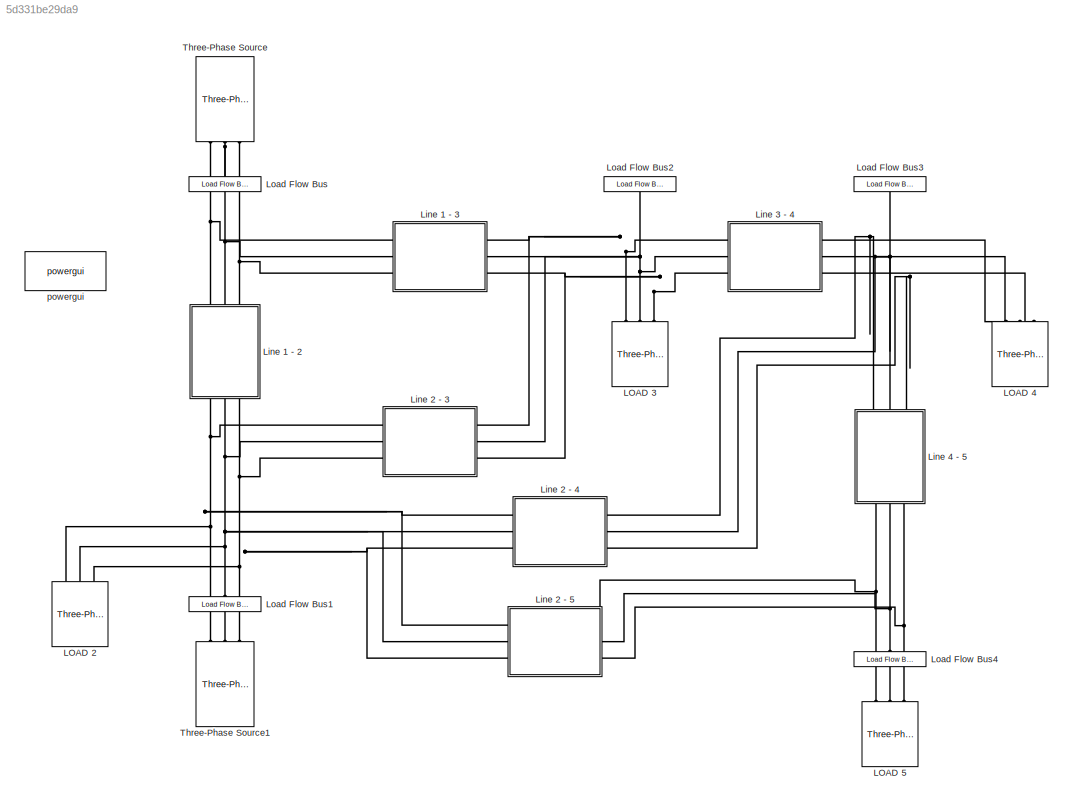
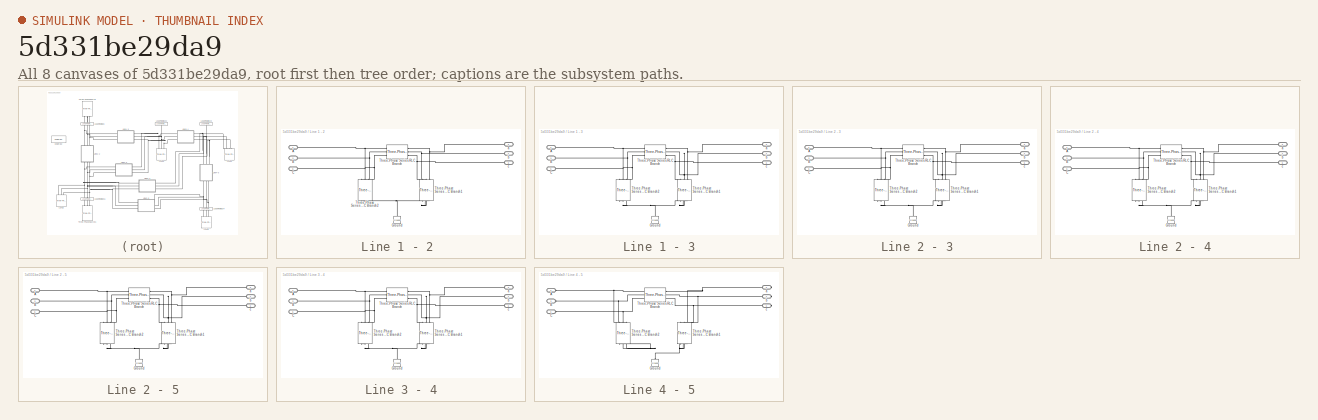
[diagram: thumbnail index - all 8 canvases of the model, root first then tree order]
MODEL slx_5d331be29da9
KIND model
CONFIG AbsTol = auto
CONFIG EnableMultiTasking = off
CONFIG FixedStep = auto
CONFIG MaxStep = auto
CONFIG MinStep = auto
CONFIG RelTol = 1e-3
CONFIG SampleTimeConstraint = Unconstrained
CONFIG Solver = VariableStepAuto
CONFIG SolverName = VariableStepAuto
CONFIG StartTime = 0.0
CONFIG StopTime = 10.0
BLOCK [Reference] LOAD 2  REF=powerlib/Elements/Three-Phase
Series RLC Load
  AttributesFormatString = \n
  Ports = [0, 0, 0, 0, 0, 3]
  SourceBlock = powerlib/Elements/Three-Phase\nSeries RLC Load
  SourceProductBaseCode = PS
  SourceProductName = Simscape Electrical
  SourceType = Three-Phase Series RLC Load
BLOCK [Reference] LOAD 3  REF=powerlib/Elements/Three-Phase
Series RLC Load
  AttributesFormatString = \n
  Ports = [0, 0, 0, 0, 0, 3]
  SourceBlock = powerlib/Elements/Three-Phase\nSeries RLC Load
  SourceProductBaseCode = PS
  SourceProductName = Simscape Electrical
  SourceType = Three-Phase Series RLC Load
BLOCK [Reference] LOAD 4  REF=powerlib/Elements/Three-Phase
Series RLC Load
  AttributesFormatString = \n
  Ports = [0, 0, 0, 0, 0, 3]
  SourceBlock = powerlib/Elements/Three-Phase\nSeries RLC Load
  SourceProductBaseCode = PS
  SourceProductName = Simscape Electrical
  SourceType = Three-Phase Series RLC Load
BLOCK [Reference] LOAD 5  REF=powerlib/Elements/Three-Phase
Series RLC Load
  AttributesFormatString = \n
  Ports = [0, 0, 0, 0, 0, 3]
  SourceBlock = powerlib/Elements/Three-Phase\nSeries RLC Load
  SourceProductBaseCode = PS
  SourceProductName = Simscape Electrical
  SourceType = Three-Phase Series RLC Load
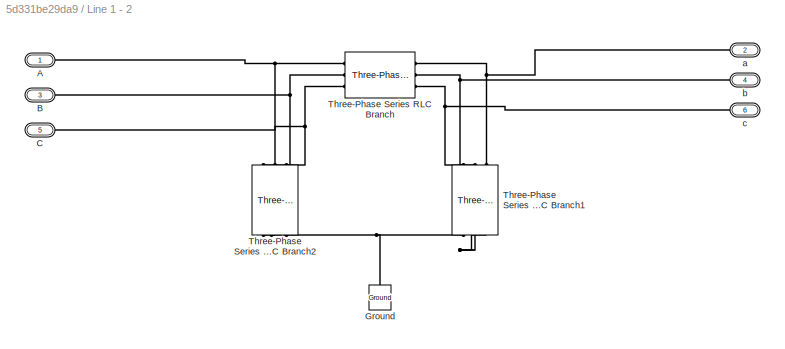
BLOCK [SubSystem] Line 1 - 2 
  Ports = [0, 0, 0, 0, 0, 3, 3]
  RequestExecContextInheritance = off
BLOCK [PMIOPort] Line 1 - 2 /A
  Side = Left
BLOCK [PMIOPort] Line 1 - 2 /B
  Port = 3
  Side = Left
BLOCK [PMIOPort] Line 1 - 2 /C
  Port = 5
  Side = Left
BLOCK [Reference] Line 1 - 2 /Ground  REF=powerlib/Elements/Ground
  Ports = [0, 0, 0, 0, 0, 1]
  SourceBlock = powerlib/Elements/Ground
  SourceProductBaseCode = PS
  SourceProductName = Simscape Electrical
  SourceType = Ground
BLOCK [Reference] Line 1 - 2 /Three-Phase Series RLC Branch  REF=powerlib/Elements/Three-Phase
Series RLC Branch
  AttributesFormatString = \n
  Ports = [0, 0, 0, 0, 0, 3, 3]
  SourceBlock = powerlib/Elements/Three-Phase\nSeries RLC Branch
  SourceProductBaseCode = PS
  SourceProductName = Simscape Electrical
  SourceType = Three-Phase Series RLC Branch
BLOCK [Reference] Line 1 - 2 /Three-Phase Series RLC Branch1  REF=powerlib/Elements/Three-Phase
Series RLC Branch
  AttributesFormatString = \n
  Ports = [0, 0, 0, 0, 0, 3, 3]
  SourceBlock = powerlib/Elements/Three-Phase\nSeries RLC Branch
  SourceProductBaseCode = PS
  SourceProductName = Simscape Electrical
  SourceType = Three-Phase Series RLC Branch
BLOCK [Reference] Line 1 - 2 /Three-Phase Series RLC Branch2  REF=powerlib/Elements/Three-Phase
Series RLC Branch
  AttributesFormatString = \n
  Ports = [0, 0, 0, 0, 0, 3, 3]
  SourceBlock = powerlib/Elements/Three-Phase\nSeries RLC Branch
  SourceProductBaseCode = PS
  SourceProductName = Simscape Electrical
  SourceType = Three-Phase Series RLC Branch
BLOCK [PMIOPort] Line 1 - 2 /a
  Port = 2
  Side = Right
BLOCK [PMIOPort] Line 1 - 2 /b
  Port = 4
  Side = Right
BLOCK [PMIOPort] Line 1 - 2 /c
  Port = 6
  Side = Right
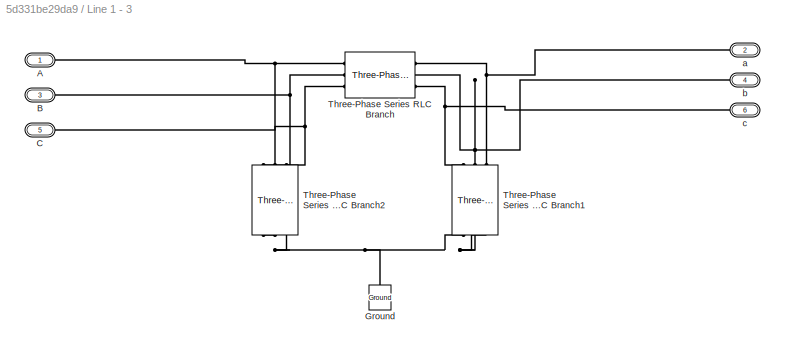
BLOCK [SubSystem] Line 1 - 3
  Ports = [0, 0, 0, 0, 0, 3, 3]
  RequestExecContextInheritance = off
BLOCK [PMIOPort] Line 1 - 3/A
  Side = Left
BLOCK [PMIOPort] Line 1 - 3/B
  Port = 3
  Side = Left
BLOCK [PMIOPort] Line 1 - 3/C
  Port = 5
  Side = Left
BLOCK [Reference] Line 1 - 3/Ground  REF=powerlib/Elements/Ground
  Ports = [0, 0, 0, 0, 0, 1]
  SourceBlock = powerlib/Elements/Ground
  SourceProductBaseCode = PS
  SourceProductName = Simscape Electrical
  SourceType = Ground
BLOCK [Reference] Line 1 - 3/Three-Phase Series RLC Branch  REF=powerlib/Elements/Three-Phase
Series RLC Branch
  AttributesFormatString = \n
  Ports = [0, 0, 0, 0, 0, 3, 3]
  SourceBlock = powerlib/Elements/Three-Phase\nSeries RLC Branch
  SourceProductBaseCode = PS
  SourceProductName = Simscape Electrical
  SourceType = Three-Phase Series RLC Branch
BLOCK [Reference] Line 1 - 3/Three-Phase Series RLC Branch1  REF=powerlib/Elements/Three-Phase
Series RLC Branch
  AttributesFormatString = \n
  Ports = [0, 0, 0, 0, 0, 3, 3]
  SourceBlock = powerlib/Elements/Three-Phase\nSeries RLC Branch
  SourceProductBaseCode = PS
  SourceProductName = Simscape Electrical
  SourceType = Three-Phase Series RLC Branch
BLOCK [Reference] Line 1 - 3/Three-Phase Series RLC Branch2  REF=powerlib/Elements/Three-Phase
Series RLC Branch
  AttributesFormatString = \n
  Ports = [0, 0, 0, 0, 0, 3, 3]
  SourceBlock = powerlib/Elements/Three-Phase\nSeries RLC Branch
  SourceProductBaseCode = PS
  SourceProductName = Simscape Electrical
  SourceType = Three-Phase Series RLC Branch
BLOCK [PMIOPort] Line 1 - 3/a
  Port = 2
  Side = Right
BLOCK [PMIOPort] Line 1 - 3/b
  Port = 4
  Side = Right
BLOCK [PMIOPort] Line 1 - 3/c
  Port = 6
  Side = Right
BLOCK [SubSystem] Line 2 - 3
  Ports = [0, 0, 0, 0, 0, 3, 3]
  RequestExecContextInheritance = off
BLOCK [PMIOPort] Line 2 - 3/A
  Side = Left
BLOCK [PMIOPort] Line 2 - 3/B
  Port = 3
  Side = Left
BLOCK [PMIOPort] Line 2 - 3/C
  Port = 5
  Side = Left
BLOCK [Reference] Line 2 - 3/Ground  REF=powerlib/Elements/Ground
  Ports = [0, 0, 0, 0, 0, 1]
  SourceBlock = powerlib/Elements/Ground
  SourceProductBaseCode = PS
  SourceProductName = Simscape Electrical
  SourceType = Ground
BLOCK [Reference] Line 2 - 3/Three-Phase Series RLC Branch  REF=powerlib/Elements/Three-Phase
Series RLC Branch
  AttributesFormatString = \n
  Ports = [0, 0, 0, 0, 0, 3, 3]
  SourceBlock = powerlib/Elements/Three-Phase\nSeries RLC Branch
  SourceProductBaseCode = PS
  SourceProductName = Simscape Electrical
  SourceType = Three-Phase Series RLC Branch
BLOCK [Reference] Line 2 - 3/Three-Phase Series RLC Branch1  REF=powerlib/Elements/Three-Phase
Series RLC Branch
  AttributesFormatString = \n
  Ports = [0, 0, 0, 0, 0, 3, 3]
  SourceBlock = powerlib/Elements/Three-Phase\nSeries RLC Branch
  SourceProductBaseCode = PS
  SourceProductName = Simscape Electrical
  SourceType = Three-Phase Series RLC Branch
BLOCK [Reference] Line 2 - 3/Three-Phase Series RLC Branch2  REF=powerlib/Elements/Three-Phase
Series RLC Branch
  AttributesFormatString = \n
  Ports = [0, 0, 0, 0, 0, 3, 3]
  SourceBlock = powerlib/Elements/Three-Phase\nSeries RLC Branch
  SourceProductBaseCode = PS
  SourceProductName = Simscape Electrical
  SourceType = Three-Phase Series RLC Branch
BLOCK [PMIOPort] Line 2 - 3/a
  Port = 2
  Side = Right
BLOCK [PMIOPort] Line 2 - 3/b
  Port = 4
  Side = Right
BLOCK [PMIOPort] Line 2 - 3/c
  Port = 6
  Side = Right
BLOCK [SubSystem] Line 2 - 4
  Ports = [0, 0, 0, 0, 0, 3, 3]
  RequestExecContextInheritance = off
BLOCK [PMIOPort] Line 2 - 4/A
  Side = Left
BLOCK [PMIOPort] Line 2 - 4/B
  Port = 3
  Side = Left
BLOCK [PMIOPort] Line 2 - 4/C
  Port = 5
  Side = Left
BLOCK [Reference] Line 2 - 4/Ground  REF=powerlib/Elements/Ground
  Ports = [0, 0, 0, 0, 0, 1]
  SourceBlock = powerlib/Elements/Ground
  SourceProductBaseCode = PS
  SourceProductName = Simscape Electrical
  SourceType = Ground
BLOCK [Reference] Line 2 - 4/Three-Phase Series RLC Branch  REF=powerlib/Elements/Three-Phase
Series RLC Branch
  AttributesFormatString = \n
  Ports = [0, 0, 0, 0, 0, 3, 3]
  SourceBlock = powerlib/Elements/Three-Phase\nSeries RLC Branch
  SourceProductBaseCode = PS
  SourceProductName = Simscape Electrical
  SourceType = Three-Phase Series RLC Branch
BLOCK [Reference] Line 2 - 4/Three-Phase Series RLC Branch1  REF=powerlib/Elements/Three-Phase
Series RLC Branch
  AttributesFormatString = \n
  Ports = [0, 0, 0, 0, 0, 3, 3]
  SourceBlock = powerlib/Elements/Three-Phase\nSeries RLC Branch
  SourceProductBaseCode = PS
  SourceProductName = Simscape Electrical
  SourceType = Three-Phase Series RLC Branch
BLOCK [Reference] Line 2 - 4/Three-Phase Series RLC Branch2  REF=powerlib/Elements/Three-Phase
Series RLC Branch
  AttributesFormatString = \n
  Ports = [0, 0, 0, 0, 0, 3, 3]
  SourceBlock = powerlib/Elements/Three-Phase\nSeries RLC Branch
  SourceProductBaseCode = PS
  SourceProductName = Simscape Electrical
  SourceType = Three-Phase Series RLC Branch
BLOCK [PMIOPort] Line 2 - 4/a
  Port = 2
  Side = Right
BLOCK [PMIOPort] Line 2 - 4/b
  Port = 4
  Side = Right
BLOCK [PMIOPort] Line 2 - 4/c
  Port = 6
  Side = Right
BLOCK [SubSystem] Line 2 - 5
  Ports = [0, 0, 0, 0, 0, 3, 3]
  RequestExecContextInheritance = off
BLOCK [PMIOPort] Line 2 - 5/A
  Side = Left
BLOCK [PMIOPort] Line 2 - 5/B
  Port = 3
  Side = Left
BLOCK [PMIOPort] Line 2 - 5/C
  Port = 5
  Side = Left
BLOCK [Reference] Line 2 - 5/Ground  REF=powerlib/Elements/Ground
  Ports = [0, 0, 0, 0, 0, 1]
  SourceBlock = powerlib/Elements/Ground
  SourceProductBaseCode = PS
  SourceProductName = Simscape Electrical
  SourceType = Ground
BLOCK [Reference] Line 2 - 5/Three-Phase Series RLC Branch  REF=powerlib/Elements/Three-Phase
Series RLC Branch
  AttributesFormatString = \n
  Ports = [0, 0, 0, 0, 0, 3, 3]
  SourceBlock = powerlib/Elements/Three-Phase\nSeries RLC Branch
  SourceProductBaseCode = PS
  SourceProductName = Simscape Electrical
  SourceType = Three-Phase Series RLC Branch
BLOCK [Reference] Line 2 - 5/Three-Phase Series RLC Branch1  REF=powerlib/Elements/Three-Phase
Series RLC Branch
  AttributesFormatString = \n
  Ports = [0, 0, 0, 0, 0, 3, 3]
  SourceBlock = powerlib/Elements/Three-Phase\nSeries RLC Branch
  SourceProductBaseCode = PS
  SourceProductName = Simscape Electrical
  SourceType = Three-Phase Series RLC Branch
BLOCK [Reference] Line 2 - 5/Three-Phase Series RLC Branch2  REF=powerlib/Elements/Three-Phase
Series RLC Branch
  AttributesFormatString = \n
  Ports = [0, 0, 0, 0, 0, 3, 3]
  SourceBlock = powerlib/Elements/Three-Phase\nSeries RLC Branch
  SourceProductBaseCode = PS
  SourceProductName = Simscape Electrical
  SourceType = Three-Phase Series RLC Branch
BLOCK [PMIOPort] Line 2 - 5/a
  Port = 2
  Side = Right
BLOCK [PMIOPort] Line 2 - 5/b
  Port = 4
  Side = Right
BLOCK [PMIOPort] Line 2 - 5/c
  Port = 6
  Side = Right
BLOCK [SubSystem] Line 3 - 4
  Ports = [0, 0, 0, 0, 0, 3, 3]
  RequestExecContextInheritance = off
BLOCK [PMIOPort] Line 3 - 4/A
  Side = Left
BLOCK [PMIOPort] Line 3 - 4/B
  Port = 3
  Side = Left
BLOCK [PMIOPort] Line 3 - 4/C
  Port = 5
  Side = Left
BLOCK [Reference] Line 3 - 4/Ground  REF=powerlib/Elements/Ground
  Ports = [0, 0, 0, 0, 0, 1]
  SourceBlock = powerlib/Elements/Ground
  SourceProductBaseCode = PS
  SourceProductName = Simscape Electrical
  SourceType = Ground
BLOCK [Reference] Line 3 - 4/Three-Phase Series RLC Branch  REF=powerlib/Elements/Three-Phase
Series RLC Branch
  AttributesFormatString = \n
  Ports = [0, 0, 0, 0, 0, 3, 3]
  SourceBlock = powerlib/Elements/Three-Phase\nSeries RLC Branch
  SourceProductBaseCode = PS
  SourceProductName = Simscape Electrical
  SourceType = Three-Phase Series RLC Branch
BLOCK [Reference] Line 3 - 4/Three-Phase Series RLC Branch1  REF=powerlib/Elements/Three-Phase
Series RLC Branch
  AttributesFormatString = \n
  Ports = [0, 0, 0, 0, 0, 3, 3]
  SourceBlock = powerlib/Elements/Three-Phase\nSeries RLC Branch
  SourceProductBaseCode = PS
  SourceProductName = Simscape Electrical
  SourceType = Three-Phase Series RLC Branch
BLOCK [Reference] Line 3 - 4/Three-Phase Series RLC Branch2  REF=powerlib/Elements/Three-Phase
Series RLC Branch
  AttributesFormatString = \n
  Ports = [0, 0, 0, 0, 0, 3, 3]
  SourceBlock = powerlib/Elements/Three-Phase\nSeries RLC Branch
  SourceProductBaseCode = PS
  SourceProductName = Simscape Electrical
  SourceType = Three-Phase Series RLC Branch
BLOCK [PMIOPort] Line 3 - 4/a
  Port = 2
  Side = Right
BLOCK [PMIOPort] Line 3 - 4/b
  Port = 4
  Side = Right
BLOCK [PMIOPort] Line 3 - 4/c
  Port = 6
  Side = Right
BLOCK [SubSystem] Line 4 - 5
  Ports = [0, 0, 0, 0, 0, 3, 3]
  RequestExecContextInheritance = off
BLOCK [PMIOPort] Line 4 - 5/A
  Side = Left
BLOCK [PMIOPort] Line 4 - 5/B
  Port = 3
  Side = Left
BLOCK [PMIOPort] Line 4 - 5/C
  Port = 5
  Side = Left
BLOCK [Reference] Line 4 - 5/Ground  REF=powerlib/Elements/Ground
  Ports = [0, 0, 0, 0, 0, 1]
  SourceBlock = powerlib/Elements/Ground
  SourceProductBaseCode = PS
  SourceProductName = Simscape Electrical
  SourceType = Ground
BLOCK [Reference] Line 4 - 5/Three-Phase Series RLC Branch  REF=powerlib/Elements/Three-Phase
Series RLC Branch
  AttributesFormatString = \n
  Ports = [0, 0, 0, 0, 0, 3, 3]
  SourceBlock = powerlib/Elements/Three-Phase\nSeries RLC Branch
  SourceProductBaseCode = PS
  SourceProductName = Simscape Electrical
  SourceType = Three-Phase Series RLC Branch
BLOCK [Reference] Line 4 - 5/Three-Phase Series RLC Branch1  REF=powerlib/Elements/Three-Phase
Series RLC Branch
  AttributesFormatString = \n
  Ports = [0, 0, 0, 0, 0, 3, 3]
  SourceBlock = powerlib/Elements/Three-Phase\nSeries RLC Branch
  SourceProductBaseCode = PS
  SourceProductName = Simscape Electrical
  SourceType = Three-Phase Series RLC Branch
BLOCK [Reference] Line 4 - 5/Three-Phase Series RLC Branch2  REF=powerlib/Elements/Three-Phase
Series RLC Branch
  AttributesFormatString = \n
  Ports = [0, 0, 0, 0, 0, 3, 3]
  SourceBlock = powerlib/Elements/Three-Phase\nSeries RLC Branch
  SourceProductBaseCode = PS
  SourceProductName = Simscape Electrical
  SourceType = Three-Phase Series RLC Branch
BLOCK [PMIOPort] Line 4 - 5/a
  Port = 2
  Side = Right
BLOCK [PMIOPort] Line 4 - 5/b
  Port = 4
  Side = Right
BLOCK [PMIOPort] Line 4 - 5/c
  Port = 6
  Side = Right
BLOCK [Reference] Load Flow Bus  REF=powerlib/Measurements/Load Flow Bus
  AttributesFormatString = %<ID>\n%<Vbase>V\n%<VLF>pu\n%<angleLF>deg.
  Ports = [0, 0, 0, 0, 0, 1]
  SourceBlock = powerlib/Measurements/Load Flow Bus
  SourceProductBaseCode = PS
  SourceProductName = Simscape Electrical
  SourceType = Load Flow Bus
BLOCK [Reference] Load Flow Bus1  REF=powerlib/Measurements/Load Flow Bus
  AttributesFormatString = %<ID>\n%<Vbase>V\n%<VLF>pu\n%<angleLF>deg.
  Ports = [0, 0, 0, 0, 0, 1]
  SourceBlock = powerlib/Measurements/Load Flow Bus
  SourceProductBaseCode = PS
  SourceProductName = Simscape Electrical
  SourceType = Load Flow Bus
BLOCK [Reference] Load Flow Bus2  REF=powerlib/Measurements/Load Flow Bus
  AttributesFormatString = %<ID>\n%<Vbase>V\n%<VLF>pu\n%<angleLF>deg.
  Ports = [0, 0, 0, 0, 0, 1]
  SourceBlock = powerlib/Measurements/Load Flow Bus
  SourceProductBaseCode = PS
  SourceProductName = Simscape Electrical
  SourceType = Load Flow Bus
BLOCK [Reference] Load Flow Bus3  REF=powerlib/Measurements/Load Flow Bus
  AttributesFormatString = %<ID>\n%<Vbase>V\n%<VLF>pu\n%<angleLF>deg.
  Ports = [0, 0, 0, 0, 0, 1]
  SourceBlock = powerlib/Measurements/Load Flow Bus
  SourceProductBaseCode = PS
  SourceProductName = Simscape Electrical
  SourceType = Load Flow Bus
BLOCK [Reference] Load Flow Bus4  REF=powerlib/Measurements/Load Flow Bus
  AttributesFormatString = %<ID>\n%<Vbase>V\n%<VLF>pu\n%<angleLF>deg.
  Ports = [0, 0, 0, 0, 0, 1]
  SourceBlock = powerlib/Measurements/Load Flow Bus
  SourceProductBaseCode = PS
  SourceProductName = Simscape Electrical
  SourceType = Load Flow Bus
BLOCK [Reference] Three-Phase Source  REF=powerlib/Electrical
Sources/Three-Phase Source
  Ports = [0, 0, 0, 0, 0, 0, 3]
  SourceBlock = powerlib/Electrical\nSources/Three-Phase Source
  SourceProductBaseCode = PS
  SourceProductName = Simscape Electrical
  SourceType = Three-Phase Source
BLOCK [Reference] Three-Phase Source1  REF=powerlib/Electrical
Sources/Three-Phase Source
  Ports = [0, 0, 0, 0, 0, 0, 3]
  SourceBlock = powerlib/Electrical\nSources/Three-Phase Source
  SourceProductBaseCode = PS
  SourceProductName = Simscape Electrical
  SourceType = Three-Phase Source
BLOCK [Reference] powergui  REF=powerlib/powergui
  Ports = []
  Priority = 1
  SourceBlock = powerlib/powergui
  SourceProductBaseCode = PS
  SourceProductName = Simscape Electrical
  SourceType = PSB option menu block
PNET net1: LOAD 2:LConn1 -- Line 1 - 2 :RConn1 -- Line 2 - 3:LConn1 -- Line 2 - 4:LConn1 -- Line 2 - 5:LConn1 -- Three-Phase Source1:RConn1
PNET net2: LOAD 2:LConn2 -- Line 1 - 2 :RConn2 -- Line 2 - 3:LConn2 -- Line 2 - 4:LConn2 -- Line 2 - 5:LConn2 -- Load Flow Bus1:LConn1 -- Three-Phase Source1:RConn2
PNET net3: LOAD 2:LConn3 -- Line 1 - 2 :RConn3 -- Line 2 - 3:LConn3 -- Line 2 - 4:LConn3 -- Line 2 - 5:LConn3 -- Three-Phase Source1:RConn3
PNET net4: LOAD 3:LConn1 -- Line 1 - 3:RConn1 -- Line 2 - 3:RConn1 -- Line 3 - 4:LConn1
PNET net5: LOAD 3:LConn2 -- Line 1 - 3:RConn2 -- Line 2 - 3:RConn2 -- Line 3 - 4:LConn2 -- Load Flow Bus2:LConn1
PNET net6: LOAD 3:LConn3 -- Line 1 - 3:RConn3 -- Line 2 - 3:RConn3 -- Line 3 - 4:LConn3
PNET net7: LOAD 4:LConn1 -- Line 2 - 4:RConn1 -- Line 3 - 4:RConn1 -- Line 4 - 5:LConn1
PNET net8: LOAD 4:LConn2 -- Line 2 - 4:RConn2 -- Line 3 - 4:RConn2 -- Line 4 - 5:LConn2 -- Load Flow Bus3:LConn1
PNET net9: LOAD 4:LConn3 -- Line 2 - 4:RConn3 -- Line 3 - 4:RConn3 -- Line 4 - 5:LConn3
PNET net10: LOAD 5:LConn1 -- Line 2 - 5:RConn1 -- Line 4 - 5:RConn1
PNET net11: LOAD 5:LConn2 -- Line 2 - 5:RConn2 -- Line 4 - 5:RConn2 -- Load Flow Bus4:LConn1
PNET net12: LOAD 5:LConn3 -- Line 2 - 5:RConn3 -- Line 4 - 5:RConn3
PNET net13: Line 1 - 2 /A:RConn1 -- Line 1 - 2 /Three-Phase Series RLC Branch2:LConn1 -- Line 1 - 2 /Three-Phase Series RLC Branch:LConn1
PNET net14: Line 1 - 2 /B:RConn1 -- Line 1 - 2 /Three-Phase Series RLC Branch2:LConn2 -- Line 1 - 2 /Three-Phase Series RLC Branch:LConn2
PNET net15: Line 1 - 2 /C:RConn1 -- Line 1 - 2 /Three-Phase Series RLC Branch2:LConn3 -- Line 1 - 2 /Three-Phase Series RLC Branch:LConn3
PNET net16: Line 1 - 2 /Ground:LConn1 -- Line 1 - 2 /Three-Phase Series RLC Branch1:RConn1 -- Line 1 - 2 /Three-Phase Series RLC Branch1:RConn2 -- Line 1 - 2 /Three-Phase Series RLC Branch1:RConn3 -- Line 1 - 2 /Three-Phase Series RLC Branch2:RConn1 -- Line 1 - 2 /Three-Phase Series RLC Branch2:RConn2 -- Line 1 - 2 /Three-Phase Series RLC Branch2:RConn3
PNET net17: Line 1 - 2 /Three-Phase Series RLC Branch1:LConn1 -- Line 1 - 2 /Three-Phase Series RLC Branch:RConn3 -- Line 1 - 2 /c:RConn1
PNET net18: Line 1 - 2 /Three-Phase Series RLC Branch1:LConn2 -- Line 1 - 2 /Three-Phase Series RLC Branch:RConn2 -- Line 1 - 2 /b:RConn1
PNET net19: Line 1 - 2 /Three-Phase Series RLC Branch1:LConn3 -- Line 1 - 2 /Three-Phase Series RLC Branch:RConn1 -- Line 1 - 2 /a:RConn1
PNET net20: Line 1 - 2 :LConn1 -- Line 1 - 3:LConn1 -- Three-Phase Source:RConn1
PNET net21: Line 1 - 2 :LConn2 -- Line 1 - 3:LConn2 -- Load Flow Bus:LConn1 -- Three-Phase Source:RConn2
PNET net22: Line 1 - 2 :LConn3 -- Line 1 - 3:LConn3 -- Three-Phase Source:RConn3
PNET net23: Line 1 - 3/A:RConn1 -- Line 1 - 3/Three-Phase Series RLC Branch2:LConn1 -- Line 1 - 3/Three-Phase Series RLC Branch:LConn1
PNET net24: Line 1 - 3/B:RConn1 -- Line 1 - 3/Three-Phase Series RLC Branch2:LConn2 -- Line 1 - 3/Three-Phase Series RLC Branch:LConn2
PNET net25: Line 1 - 3/C:RConn1 -- Line 1 - 3/Three-Phase Series RLC Branch2:LConn3 -- Line 1 - 3/Three-Phase Series RLC Branch:LConn3
PNET net26: Line 1 - 3/Ground:LConn1 -- Line 1 - 3/Three-Phase Series RLC Branch1:RConn1 -- Line 1 - 3/Three-Phase Series RLC Branch1:RConn2 -- Line 1 - 3/Three-Phase Series RLC Branch1:RConn3 -- Line 1 - 3/Three-Phase Series RLC Branch2:RConn1 -- Line 1 - 3/Three-Phase Series RLC Branch2:RConn2 -- Line 1 - 3/Three-Phase Series RLC Branch2:RConn3
PNET net27: Line 1 - 3/Three-Phase Series RLC Branch1:LConn1 -- Line 1 - 3/Three-Phase Series RLC Branch:RConn3 -- Line 1 - 3/c:RConn1
PNET net28: Line 1 - 3/Three-Phase Series RLC Branch1:LConn2 -- Line 1 - 3/Three-Phase Series RLC Branch:RConn2 -- Line 1 - 3/b:RConn1
PNET net29: Line 1 - 3/Three-Phase Series RLC Branch1:LConn3 -- Line 1 - 3/Three-Phase Series RLC Branch:RConn1 -- Line 1 - 3/a:RConn1
PNET net30: Line 2 - 3/A:RConn1 -- Line 2 - 3/Three-Phase Series RLC Branch2:LConn1 -- Line 2 - 3/Three-Phase Series RLC Branch:LConn1
PNET net31: Line 2 - 3/B:RConn1 -- Line 2 - 3/Three-Phase Series RLC Branch2:LConn2 -- Line 2 - 3/Three-Phase Series RLC Branch:LConn2
PNET net32: Line 2 - 3/C:RConn1 -- Line 2 - 3/Three-Phase Series RLC Branch2:LConn3 -- Line 2 - 3/Three-Phase Series RLC Branch:LConn3
PNET net33: Line 2 - 3/Ground:LConn1 -- Line 2 - 3/Three-Phase Series RLC Branch1:RConn1 -- Line 2 - 3/Three-Phase Series RLC Branch1:RConn2 -- Line 2 - 3/Three-Phase Series RLC Branch1:RConn3 -- Line 2 - 3/Three-Phase Series RLC Branch2:RConn1 -- Line 2 - 3/Three-Phase Series RLC Branch2:RConn2 -- Line 2 - 3/Three-Phase Series RLC Branch2:RConn3
PNET net34: Line 2 - 3/Three-Phase Series RLC Branch1:LConn1 -- Line 2 - 3/Three-Phase Series RLC Branch:RConn3 -- Line 2 - 3/c:RConn1
PNET net35: Line 2 - 3/Three-Phase Series RLC Branch1:LConn2 -- Line 2 - 3/Three-Phase Series RLC Branch:RConn2 -- Line 2 - 3/b:RConn1
PNET net36: Line 2 - 3/Three-Phase Series RLC Branch1:LConn3 -- Line 2 - 3/Three-Phase Series RLC Branch:RConn1 -- Line 2 - 3/a:RConn1
PNET net37: Line 2 - 4/A:RConn1 -- Line 2 - 4/Three-Phase Series RLC Branch2:LConn1 -- Line 2 - 4/Three-Phase Series RLC Branch:LConn1
PNET net38: Line 2 - 4/B:RConn1 -- Line 2 - 4/Three-Phase Series RLC Branch2:LConn2 -- Line 2 - 4/Three-Phase Series RLC Branch:LConn2
PNET net39: Line 2 - 4/C:RConn1 -- Line 2 - 4/Three-Phase Series RLC Branch2:LConn3 -- Line 2 - 4/Three-Phase Series RLC Branch:LConn3
PNET net40: Line 2 - 4/Ground:LConn1 -- Line 2 - 4/Three-Phase Series RLC Branch1:RConn1 -- Line 2 - 4/Three-Phase Series RLC Branch1:RConn2 -- Line 2 - 4/Three-Phase Series RLC Branch1:RConn3 -- Line 2 - 4/Three-Phase Series RLC Branch2:RConn1 -- Line 2 - 4/Three-Phase Series RLC Branch2:RConn2 -- Line 2 - 4/Three-Phase Series RLC Branch2:RConn3
PNET net41: Line 2 - 4/Three-Phase Series RLC Branch1:LConn1 -- Line 2 - 4/Three-Phase Series RLC Branch:RConn3 -- Line 2 - 4/c:RConn1
PNET net42: Line 2 - 4/Three-Phase Series RLC Branch1:LConn2 -- Line 2 - 4/Three-Phase Series RLC Branch:RConn2 -- Line 2 - 4/b:RConn1
PNET net43: Line 2 - 4/Three-Phase Series RLC Branch1:LConn3 -- Line 2 - 4/Three-Phase Series RLC Branch:RConn1 -- Line 2 - 4/a:RConn1
PNET net44: Line 2 - 5/A:RConn1 -- Line 2 - 5/Three-Phase Series RLC Branch2:LConn1 -- Line 2 - 5/Three-Phase Series RLC Branch:LConn1
PNET net45: Line 2 - 5/B:RConn1 -- Line 2 - 5/Three-Phase Series RLC Branch2:LConn2 -- Line 2 - 5/Three-Phase Series RLC Branch:LConn2
PNET net46: Line 2 - 5/C:RConn1 -- Line 2 - 5/Three-Phase Series RLC Branch2:LConn3 -- Line 2 - 5/Three-Phase Series RLC Branch:LConn3
PNET net47: Line 2 - 5/Ground:LConn1 -- Line 2 - 5/Three-Phase Series RLC Branch1:RConn1 -- Line 2 - 5/Three-Phase Series RLC Branch1:RConn2 -- Line 2 - 5/Three-Phase Series RLC Branch1:RConn3 -- Line 2 - 5/Three-Phase Series RLC Branch2:RConn1 -- Line 2 - 5/Three-Phase Series RLC Branch2:RConn2 -- Line 2 - 5/Three-Phase Series RLC Branch2:RConn3
PNET net48: Line 2 - 5/Three-Phase Series RLC Branch1:LConn1 -- Line 2 - 5/Three-Phase Series RLC Branch:RConn3 -- Line 2 - 5/c:RConn1
PNET net49: Line 2 - 5/Three-Phase Series RLC Branch1:LConn2 -- Line 2 - 5/Three-Phase Series RLC Branch:RConn2 -- Line 2 - 5/b:RConn1
PNET net50: Line 2 - 5/Three-Phase Series RLC Branch1:LConn3 -- Line 2 - 5/Three-Phase Series RLC Branch:RConn1 -- Line 2 - 5/a:RConn1
PNET net51: Line 3 - 4/A:RConn1 -- Line 3 - 4/Three-Phase Series RLC Branch2:LConn1 -- Line 3 - 4/Three-Phase Series RLC Branch:LConn1
PNET net52: Line 3 - 4/B:RConn1 -- Line 3 - 4/Three-Phase Series RLC Branch2:LConn2 -- Line 3 - 4/Three-Phase Series RLC Branch:LConn2
PNET net53: Line 3 - 4/C:RConn1 -- Line 3 - 4/Three-Phase Series RLC Branch2:LConn3 -- Line 3 - 4/Three-Phase Series RLC Branch:LConn3
PNET net54: Line 3 - 4/Ground:LConn1 -- Line 3 - 4/Three-Phase Series RLC Branch1:RConn1 -- Line 3 - 4/Three-Phase Series RLC Branch1:RConn2 -- Line 3 - 4/Three-Phase Series RLC Branch1:RConn3 -- Line 3 - 4/Three-Phase Series RLC Branch2:RConn1 -- Line 3 - 4/Three-Phase Series RLC Branch2:RConn2 -- Line 3 - 4/Three-Phase Series RLC Branch2:RConn3
PNET net55: Line 3 - 4/Three-Phase Series RLC Branch1:LConn1 -- Line 3 - 4/Three-Phase Series RLC Branch:RConn3 -- Line 3 - 4/c:RConn1
PNET net56: Line 3 - 4/Three-Phase Series RLC Branch1:LConn2 -- Line 3 - 4/Three-Phase Series RLC Branch:RConn2 -- Line 3 - 4/b:RConn1
PNET net57: Line 3 - 4/Three-Phase Series RLC Branch1:LConn3 -- Line 3 - 4/Three-Phase Series RLC Branch:RConn1 -- Line 3 - 4/a:RConn1
PNET net58: Line 4 - 5/A:RConn1 -- Line 4 - 5/Three-Phase Series RLC Branch2:LConn1 -- Line 4 - 5/Three-Phase Series RLC Branch:LConn1
PNET net59: Line 4 - 5/B:RConn1 -- Line 4 - 5/Three-Phase Series RLC Branch2:LConn2 -- Line 4 - 5/Three-Phase Series RLC Branch:LConn2
PNET net60: Line 4 - 5/C:RConn1 -- Line 4 - 5/Three-Phase Series RLC Branch2:LConn3 -- Line 4 - 5/Three-Phase Series RLC Branch:LConn3
PNET net61: Line 4 - 5/Ground:LConn1 -- Line 4 - 5/Three-Phase Series RLC Branch1:RConn1 -- Line 4 - 5/Three-Phase Series RLC Branch1:RConn2 -- Line 4 - 5/Three-Phase Series RLC Branch1:RConn3 -- Line 4 - 5/Three-Phase Series RLC Branch2:RConn1 -- Line 4 - 5/Three-Phase Series RLC Branch2:RConn2 -- Line 4 - 5/Three-Phase Series RLC Branch2:RConn3
PNET net62: Line 4 - 5/Three-Phase Series RLC Branch1:LConn1 -- Line 4 - 5/Three-Phase Series RLC Branch:RConn3 -- Line 4 - 5/c:RConn1
PNET net63: Line 4 - 5/Three-Phase Series RLC Branch1:LConn2 -- Line 4 - 5/Three-Phase Series RLC Branch:RConn2 -- Line 4 - 5/b:RConn1
PNET net64: Line 4 - 5/Three-Phase Series RLC Branch1:LConn3 -- Line 4 - 5/Three-Phase Series RLC Branch:RConn1 -- Line 4 - 5/a:RConn1
note: PNET lines group multi-terminal physical nets as a canonical sorted terminal list (undirected conserving connections); 2-terminal nets keep the pairwise PLINE form
